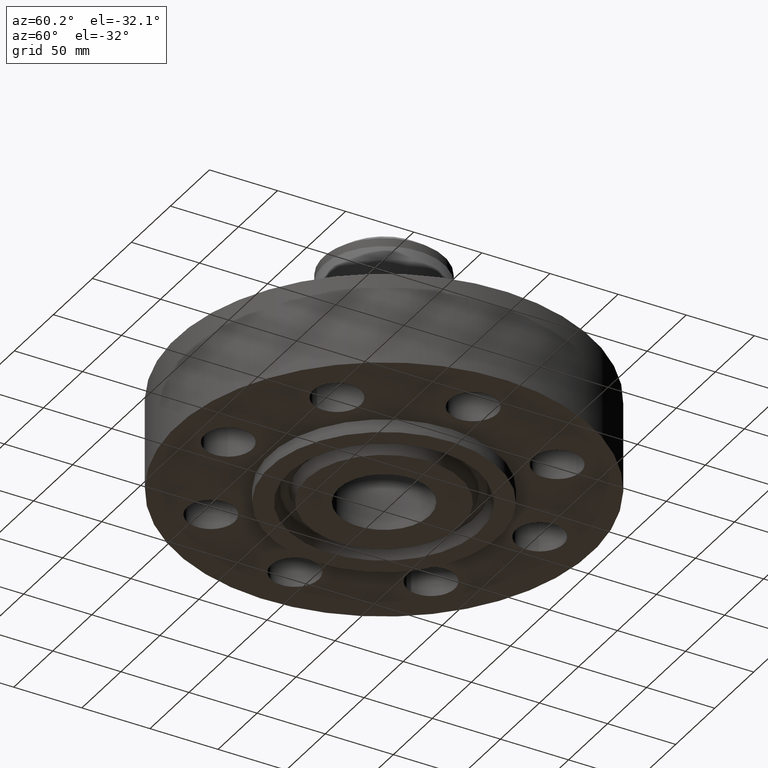
[diagram: clean part render]
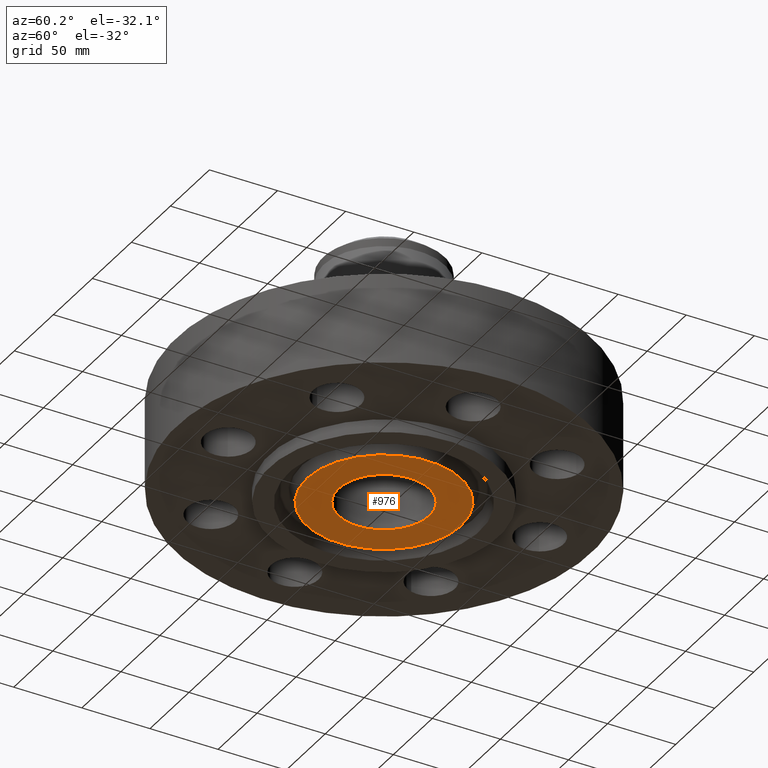
[diagram: same view with one face highlighted and labeled with its STEP entity id]
A machine part, auxiliary view. The second image highlights one B-rep face of the part: STEP entity #976.
In plain terms, the highlighted planar face has unit normal (0, 0, -1).
Its self-contained STEP definition (entity closure, byte-faithful):
#363=AXIS2_PLACEMENT_3D('Circle Axis2P3D',#361,#362,$) ;
#387=AXIS2_PLACEMENT_3D('Circle Axis2P3D',#385,#386,$) ;
#929=AXIS2_PLACEMENT_3D('Plane Axis2P3D',#926,#927,#928) ;
#956=AXIS2_PLACEMENT_3D('Circle Axis2P3D',#954,#955,$) ;
#965=AXIS2_PLACEMENT_3D('Circle Axis2P3D',#963,#964,$) ;
#358=CARTESIAN_POINT('Vertex',(0.629006306651,1.1513883212,-0.375000000002)) ;
#361=CARTESIAN_POINT('Axis2P3D Location',(0.,0.,-0.375000000002)) ;
#365=CARTESIAN_POINT('Vertex',(-0.629006306651,-1.1513883212,-0.375000000002)) ;
#385=CARTESIAN_POINT('Axis2P3D Location',(0.,0.,-0.375000000002)) ;
#926=CARTESIAN_POINT('Axis2P3D Location',(0.,1.31200000001,-0.375000000001)) ;
#954=CARTESIAN_POINT('Axis2P3D Location',(-2.79741234551E-016,0.,-0.375000000001)) ;
#958=CARTESIAN_POINT('Vertex',(-1.07127636602,1.96095823455,-0.375000000001)) ;
#960=CARTESIAN_POINT('Vertex',(1.07127636602,-1.96095823455,-0.375000000001)) ;
#963=CARTESIAN_POINT('Axis2P3D Location',(-8.39223703654E-016,0.,-0.375000000001)) ;
#362=DIRECTION('Axis2P3D Direction',(0.,0.,-0.0393700787402)) ;
#386=DIRECTION('Axis2P3D Direction',(0.,0.,-0.0393700787402)) ;
#927=DIRECTION('Axis2P3D Direction',(0.,0.,-0.0393700787402)) ;
#928=DIRECTION('Axis2P3D XDirection',(0.0393700787402,0.,0.)) ;
#955=DIRECTION('Axis2P3D Direction',(0.,0.,-0.0393700787402)) ;
#964=DIRECTION('Axis2P3D Direction',(0.,0.,-0.0393700787402)) ;
#969=ORIENTED_EDGE('',*,*,#962,.T.) ;
#970=ORIENTED_EDGE('',*,*,#967,.T.) ;
#973=ORIENTED_EDGE('',*,*,#367,.F.) ;
#974=ORIENTED_EDGE('',*,*,#389,.F.) ;
#975=FACE_BOUND('',#972,.T.) ;
#976=ADVANCED_FACE('PartBody',(#971,#975),#930,.T.) ;
#364=CIRCLE('generated circle',#363,1.31200000001) ;
#388=CIRCLE('generated circle',#387,1.31200000001) ;
#957=CIRCLE('generated circle',#956,2.23450000001) ;
#966=CIRCLE('generated circle',#965,2.23450000001) ;
#367=EDGE_CURVE('',#359,#366,#364,.T.) ;
#389=EDGE_CURVE('',#366,#359,#388,.T.) ;
#962=EDGE_CURVE('',#959,#961,#957,.T.) ;
#967=EDGE_CURVE('',#961,#959,#966,.T.) ;
#968=EDGE_LOOP('',(#969,#970)) ;
#972=EDGE_LOOP('',(#973,#974)) ;
#971=FACE_OUTER_BOUND('',#968,.T.) ;
#930=PLANE('',#929) ;
#359=VERTEX_POINT('',#358) ;
#366=VERTEX_POINT('',#365) ;
#959=VERTEX_POINT('',#958) ;
#961=VERTEX_POINT('',#960) ;